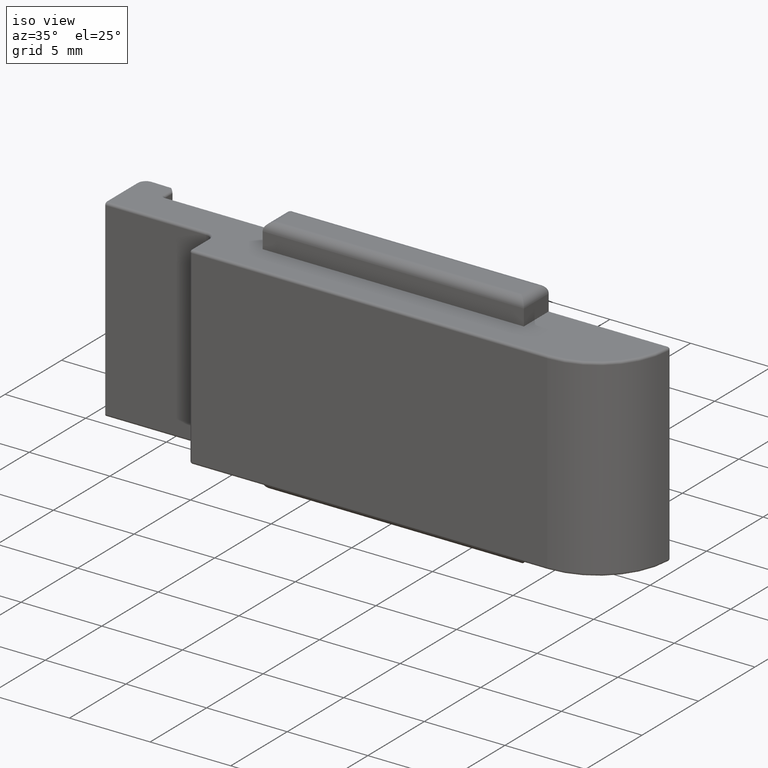
[diagram: clean part render]
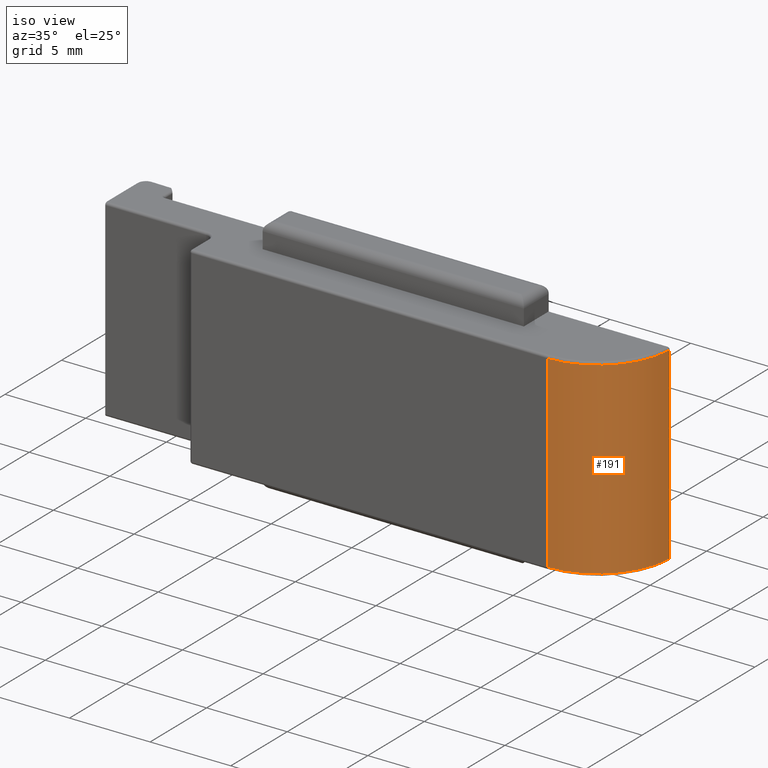
[diagram: same view with one face highlighted and labeled with its STEP entity id]
A machine part, iso view. The second image highlights one B-rep face of the part: STEP entity #191.
In plain terms, the highlighted cylindrical surface (partial cylindrical patch) has radius 4.5 mm, axis along (0, 0, -1).
Its self-contained STEP definition (entity closure, byte-faithful):
#11 = CARTESIAN_POINT ( 'NONE',  ( 22.19999999999999574, -0.6000000000000010880, 11.84999999999999964 ) ) ;
#65 = DIRECTION ( 'NONE',  ( -1.000000000000000000, 0.000000000000000000, 0.000000000000000000 ) ) ;
#191 = ADVANCED_FACE ( 'NONE', ( #799 ), #1534, .T. ) ;
#247 = ORIENTED_EDGE ( 'NONE', *, *, #2049, .T. ) ;
#263 = DIRECTION ( 'NONE',  ( -1.000000000000000000, 0.000000000000000000, 0.000000000000000000 ) ) ;
#349 = DIRECTION ( 'NONE',  ( 0.000000000000000000, 0.000000000000000000, -1.000000000000000000 ) ) ;
#360 = DIRECTION ( 'NONE',  ( -0.000000000000000000, -0.000000000000000000, 1.000000000000000000 ) ) ;
#361 = EDGE_CURVE ( 'NONE', #1863, #897, #1512, .T. ) ;
#434 = DIRECTION ( 'NONE',  ( -0.000000000000000000, -0.000000000000000000, 1.000000000000000000 ) ) ;
#550 = CARTESIAN_POINT ( 'NONE',  ( 26.69732381778292662, -0.7551724137931042913, 12.00000000000000000 ) ) ;
#621 = ORIENTED_EDGE ( 'NONE', *, *, #361, .T. ) ;
#776 = CARTESIAN_POINT ( 'NONE',  ( 22.19999999999999574, -0.6000000000000010880, 0.1500000000000008271 ) ) ;
#780 = AXIS2_PLACEMENT_3D ( 'NONE', #776, #434, #65 ) ;
#799 = FACE_OUTER_BOUND ( 'NONE', #1440, .T. ) ;
#831 = CARTESIAN_POINT ( 'NONE',  ( 26.69732381778292662, -0.7551724137931042913, 0.1500000000000008271 ) ) ;
#843 = CIRCLE ( 'NONE', #780, 4.500000000000000888 ) ;
#897 = VERTEX_POINT ( 'NONE', #1890 ) ;
#913 = EDGE_CURVE ( 'NONE', #1001, #1098, #1588, .T. ) ;
#935 = CARTESIAN_POINT ( 'NONE',  ( 22.19999999999999574, -0.6000000000000010880, 12.00000000000000000 ) ) ;
#1001 = VERTEX_POINT ( 'NONE', #1221 ) ;
#1057 = DIRECTION ( 'NONE',  ( -0.000000000000000000, -0.000000000000000000, 1.000000000000000000 ) ) ;
#1098 = VERTEX_POINT ( 'NONE', #1907 ) ;
#1221 = CARTESIAN_POINT ( 'NONE',  ( 22.19999999999999574, -5.100000000000001421, 0.1500000000000008271 ) ) ;
#1349 = VECTOR ( 'NONE', #360, 1000.000000000000000 ) ;
#1440 = EDGE_LOOP ( 'NONE', ( #621, #247, #1622, #1918 ) ) ;
#1512 = LINE ( 'NONE', #550, #1763 ) ;
#1516 = AXIS2_PLACEMENT_3D ( 'NONE', #11, #349, #1552 ) ;
#1534 = CYLINDRICAL_SURFACE ( 'NONE', #1558, 4.500000000000000888 ) ;
#1552 = DIRECTION ( 'NONE',  ( -1.000000000000000000, 0.000000000000000000, 0.000000000000000000 ) ) ;
#1556 = CIRCLE ( 'NONE', #1516, 4.500000000000000888 ) ;
#1558 = AXIS2_PLACEMENT_3D ( 'NONE', #935, #2113, #263 ) ;
#1588 = LINE ( 'NONE', #2046, #1349 ) ;
#1622 = ORIENTED_EDGE ( 'NONE', *, *, #913, .F. ) ;
#1702 = EDGE_CURVE ( 'NONE', #1001, #1863, #843, .T. ) ;
#1763 = VECTOR ( 'NONE', #1057, 1000.000000000000000 ) ;
#1863 = VERTEX_POINT ( 'NONE', #831 ) ;
#1890 = CARTESIAN_POINT ( 'NONE',  ( 26.69732381778292662, -0.7551724137931042913, 11.84999999999999964 ) ) ;
#1907 = CARTESIAN_POINT ( 'NONE',  ( 22.19999999999999574, -5.100000000000001421, 11.84999999999999964 ) ) ;
#1918 = ORIENTED_EDGE ( 'NONE', *, *, #1702, .T. ) ;
#2046 = CARTESIAN_POINT ( 'NONE',  ( 22.19999999999999574, -5.100000000000001421, 12.00000000000000000 ) ) ;
#2049 = EDGE_CURVE ( 'NONE', #897, #1098, #1556, .T. ) ;
#2113 = DIRECTION ( 'NONE',  ( 0.000000000000000000, 0.000000000000000000, -1.000000000000000000 ) ) ;